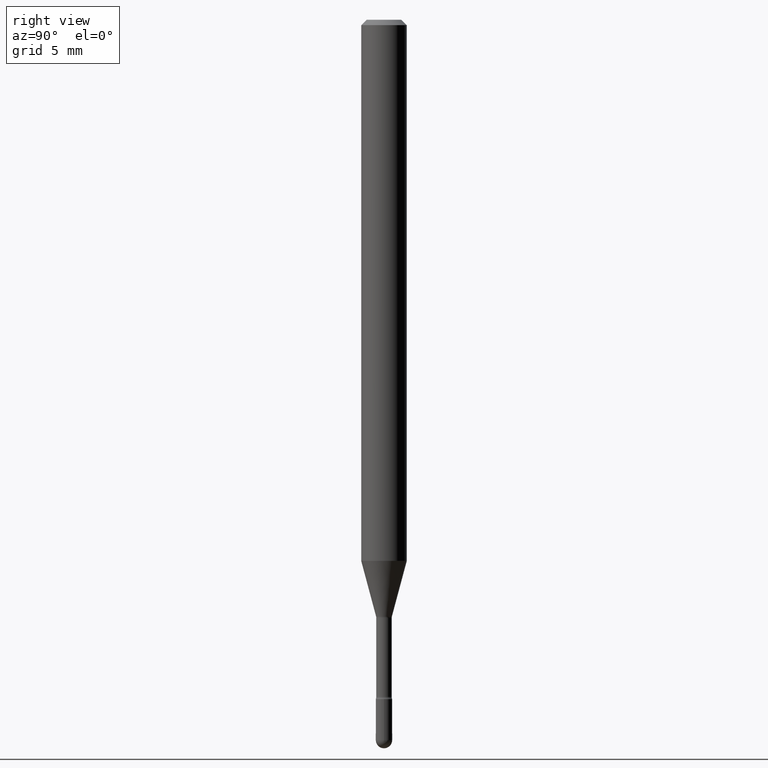
[diagram: clean part render]
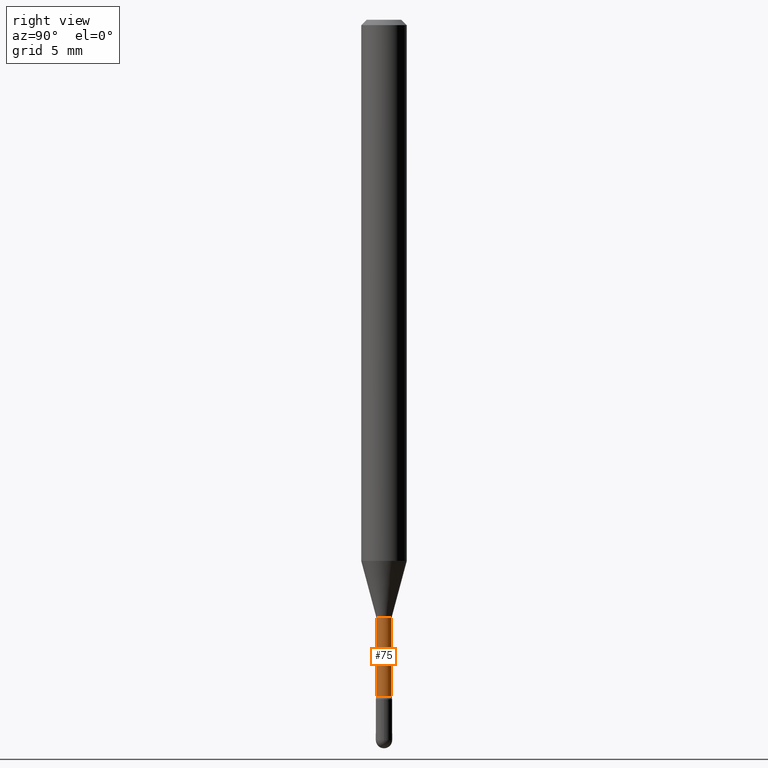
[diagram: same view with one face highlighted and labeled with its STEP entity id]
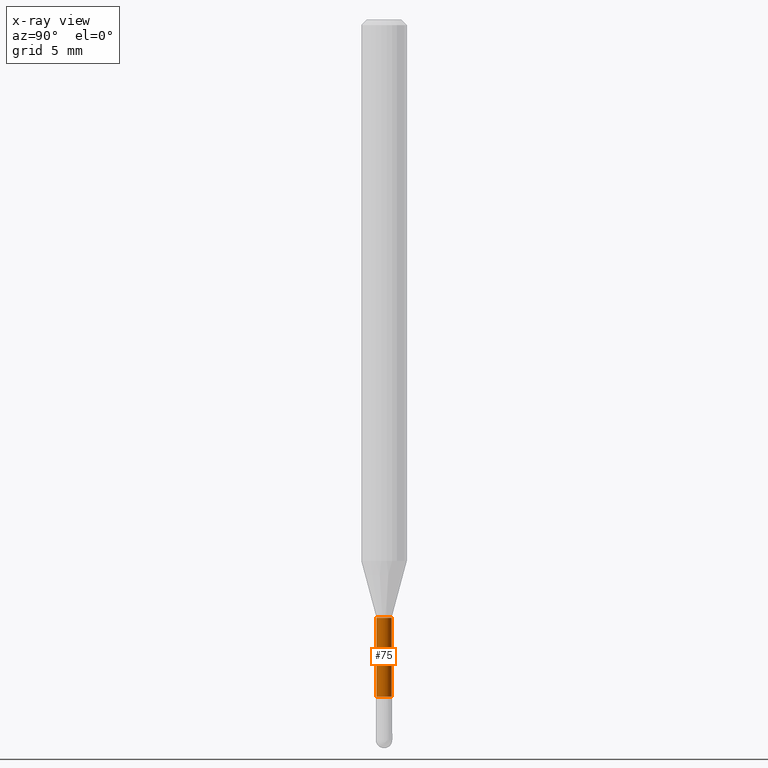
[diagram: x-ray of the same camera — body ghosted, the highlighted face saturated]
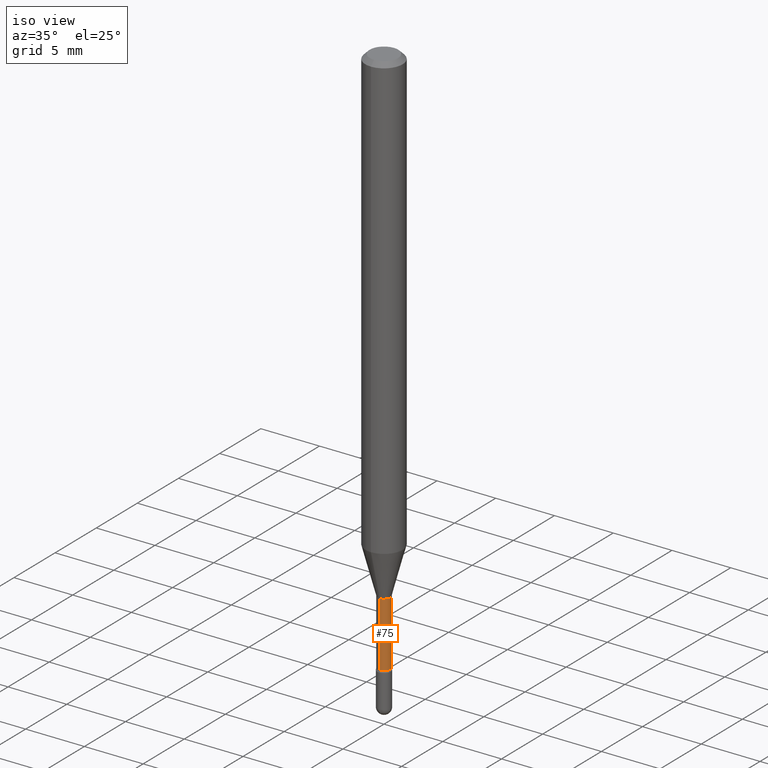
[diagram: same view with one face highlighted and labeled with its STEP entity id]
A machine part, right view. The second image highlights one B-rep face of the part: STEP entity #75.
The next image is the same camera in x-ray: the body ghosted, the highlighted face saturated — about 0% of this face is hidden behind the body in this view.
A second angle (iso view) of the same face is appended — the face is thin or edge-on in the first view.
In plain terms, the highlighted cylindrical surface (edge-blend (fillet) strip) has radius 0.5372 mm, axis along (-0, 0, 1).
Its self-contained STEP definition (entity closure, byte-faithful):
#5 = CARTESIAN_POINT ( 'NONE',  ( -1.476896606330243195E-16, -0.02115000000000572325, -1.641974787463811314 ) ) ;
#59 = DIRECTION ( 'NONE',  ( -2.445448411805292679E-29, 3.491510544755857519E-15, 1.000000000000000000 ) ) ;
#74 = ORIENTED_EDGE ( 'NONE', *, *, #399, .T. ) ;
#75 = ADVANCED_FACE ( 'NONE', ( #321 ), #328, .T. ) ;
#76 = DIRECTION ( 'NONE',  ( -2.445448411805292679E-29, 3.491510544755857914E-15, 1.000000000000000000 ) ) ;
#102 = CARTESIAN_POINT ( 'NONE',  ( -1.476896606330646007E-16, -0.02115000000000000907, 5.519188469128324018E-16 ) ) ;
#105 = ORIENTED_EDGE ( 'NONE', *, *, #201, .F. ) ;
#131 = EDGE_CURVE ( 'NONE', #270, #468, #244, .T. ) ;
#135 = ORIENTED_EDGE ( 'NONE', *, *, #288, .T. ) ;
#136 = LINE ( 'NONE', #401, #210 ) ;
#145 = CIRCLE ( 'NONE', #218, 0.02115000000000002642 ) ;
#156 = VECTOR ( 'NONE', #59, 39.37007874015748143 ) ;
#201 = EDGE_CURVE ( 'NONE', #468, #525, #299, .T. ) ;
#210 = VECTOR ( 'NONE', #315, 39.37007874015748143 ) ;
#211 = CARTESIAN_POINT ( 'NONE',  ( -1.476896606330192412E-16, -0.02115000000000651428, -1.858780876267511539 ) ) ;
#218 = AXIS2_PLACEMENT_3D ( 'NONE', #564, #76, #298 ) ;
#241 = DIRECTION ( 'NONE',  ( -6.982962677686266711E-15, -1.000000000000000000, 3.491510544755855547E-15 ) ) ;
#244 = LINE ( 'NONE', #102, #156 ) ;
#270 = VERTEX_POINT ( 'NONE', #211 ) ;
#288 = EDGE_CURVE ( 'NONE', #270, #475, #145, .T. ) ;
#298 = DIRECTION ( 'NONE',  ( -6.982962677686266711E-15, -1.000000000000000000, 0.000000000000000000 ) ) ;
#299 = CIRCLE ( 'NONE', #406, 0.02114999999999999172 ) ;
#315 = DIRECTION ( 'NONE',  ( -2.445448411805292679E-29, 3.491510544755857519E-15, 1.000000000000000000 ) ) ;
#321 = FACE_OUTER_BOUND ( 'NONE', #556, .T. ) ;
#328 = CYLINDRICAL_SURFACE ( 'NONE', #504, 0.02115000000000000907 ) ;
#335 = CARTESIAN_POINT ( 'NONE',  ( 1.502797886133066626E-16, 0.02114999999999426020, -1.641974787463811314 ) ) ;
#358 = CARTESIAN_POINT ( 'NONE',  ( 1.550759520796874516E-16, 0.02114999999999353855, -1.858780876267511539 ) ) ;
#364 = CARTESIAN_POINT ( 'NONE',  ( -1.169113584055446105E-44, 1.669184350826100908E-30, 4.780733988912460139E-16 ) ) ;
#372 = ORIENTED_EDGE ( 'NONE', *, *, #131, .F. ) ;
#399 = EDGE_CURVE ( 'NONE', #475, #525, #136, .T. ) ;
#401 = CARTESIAN_POINT ( 'NONE',  ( 1.502797886132612291E-16, 0.02115000000000000907, 4.042279508696596260E-16 ) ) ;
#406 = AXIS2_PLACEMENT_3D ( 'NONE', #523, #472, #421 ) ;
#414 = DIRECTION ( 'NONE',  ( -2.445448411805292679E-29, 3.491510544755857914E-15, 1.000000000000000000 ) ) ;
#421 = DIRECTION ( 'NONE',  ( -6.982962677686266711E-15, -1.000000000000000000, 0.000000000000000000 ) ) ;
#468 = VERTEX_POINT ( 'NONE', #5 ) ;
#472 = DIRECTION ( 'NONE',  ( -2.445448411805292679E-29, 3.491510544755857914E-15, 1.000000000000000000 ) ) ;
#475 = VERTEX_POINT ( 'NONE', #358 ) ;
#504 = AXIS2_PLACEMENT_3D ( 'NONE', #364, #414, #241 ) ;
#523 = CARTESIAN_POINT ( 'NONE',  ( 4.015364636227710403E-29, -5.732972284653155346E-15, -1.641974787463811314 ) ) ;
#525 = VERTEX_POINT ( 'NONE', #335 ) ;
#556 = EDGE_LOOP ( 'NONE', ( #135, #74, #105, #372 ) ) ;
#564 = CARTESIAN_POINT ( 'NONE',  ( 4.545552741762436935E-29, -6.489953029878550844E-15, -1.858780876267511539 ) ) ;